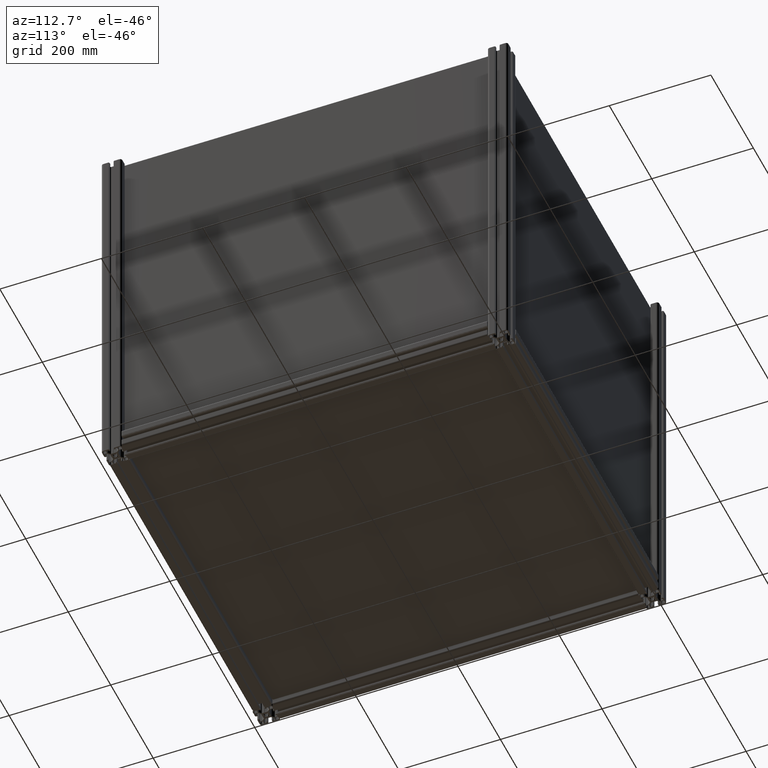
[diagram: clean part render]
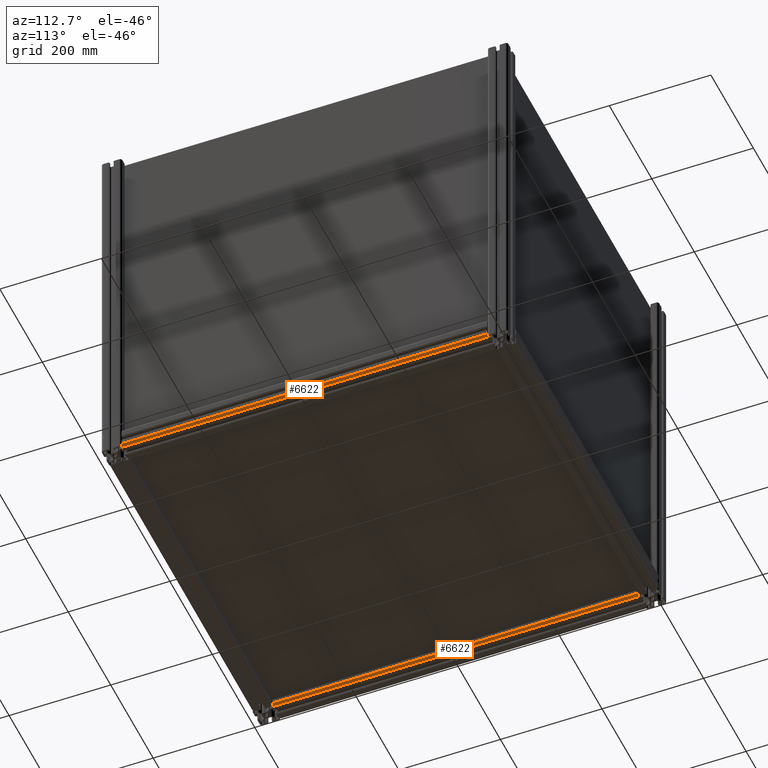
[diagram: same view with one multi-face feature highlighted, each face labeled with its STEP entity id]
A machine part, auxiliary view. The highlighted faces form ONE feature: a constant-radius fillet chain: 2 tangent blend faces with common blend radius 4.5 mm. The faces share edges in the B-rep.
Their STEP definitions:
[1] entity #6622 (Cylinder):
#585 = VECTOR ( 'NONE', #6517, 1000.000000000000000 ) ;
#679 = DIRECTION ( 'NONE',  ( 0.000000000000000000, 0.000000000000000000, 1.000000000000000000 ) ) ;
#680 = DIRECTION ( 'NONE',  ( -1.000000000000000000, 0.000000000000000000, 0.000000000000000000 ) ) ;
#1772 = ORIENTED_EDGE ( 'NONE', *, *, #9236, .F. ) ;
#2627 = VERTEX_POINT ( 'NONE', #4440 ) ;
#2941 = DIRECTION ( 'NONE',  ( -1.000000000000000000, 0.000000000000000000, 0.000000000000000000 ) ) ;
#3309 = EDGE_LOOP ( 'NONE', ( #8115, #5472, #1772, #16495 ) ) ;
#3312 = DIRECTION ( 'NONE',  ( -1.000000000000000000, 0.000000000000000000, 0.000000000000000000 ) ) ;
#3463 = CARTESIAN_POINT ( 'NONE',  ( 15.50000000000000000, -15.49999999999820055, 0.000000000000000000 ) ) ;
#3668 = EDGE_CURVE ( 'NONE', #15902, #5578, #10125, .T. ) ;
#3745 = CARTESIAN_POINT ( 'NONE',  ( 15.50000000000000000, -19.99999999999819877, 0.000000000000000000 ) ) ;
#3928 = CARTESIAN_POINT ( 'NONE',  ( 20.00000000000000000, -15.49999999999820055, 0.000000000000000000 ) ) ;
#4440 = CARTESIAN_POINT ( 'NONE',  ( 20.00000000000000000, -15.49999999999820055, 720.0000000000000000 ) ) ;
#4499 = EDGE_CURVE ( 'NONE', #5578, #2627, #12093, .T. ) ;
#4725 = CARTESIAN_POINT ( 'NONE',  ( 15.50000000000000000, -15.49999999999820055, 720.0000000000000000 ) ) ;
#5472 = ORIENTED_EDGE ( 'NONE', *, *, #4499, .T. ) ;
#5578 = VERTEX_POINT ( 'NONE', #3928 ) ;
#5687 = LINE ( 'NONE', #8597, #5736 ) ;
#5736 = VECTOR ( 'NONE', #7011, 1000.000000000000000 ) ;
#6517 = DIRECTION ( 'NONE',  ( 0.000000000000000000, 0.000000000000000000, 1.000000000000000000 ) ) ;
#6622 = ADVANCED_FACE ( 'NONE', ( #7708 ), #13216, .T. ) ;
#7011 = DIRECTION ( 'NONE',  ( 0.000000000000000000, 0.000000000000000000, -1.000000000000000000 ) ) ;
#7119 = CIRCLE ( 'NONE', #9539, 4.500000000000000888 ) ;
#7162 = CARTESIAN_POINT ( 'NONE',  ( 15.50000000000000000, -15.49999999999820055, 720.0000000000000000 ) ) ;
#7708 = FACE_OUTER_BOUND ( 'NONE', #3309, .T. ) ;
#8115 = ORIENTED_EDGE ( 'NONE', *, *, #3668, .T. ) ;
#8597 = CARTESIAN_POINT ( 'NONE',  ( 15.50000000000000000, -19.99999999999819877, 720.0000000000000000 ) ) ;
#8894 = AXIS2_PLACEMENT_3D ( 'NONE', #4725, #13702, #3312 ) ;
#9236 = EDGE_CURVE ( 'NONE', #9867, #2627, #7119, .T. ) ;
#9539 = AXIS2_PLACEMENT_3D ( 'NONE', #7162, #679, #2941 ) ;
#9867 = VERTEX_POINT ( 'NONE', #14634 ) ;
#10013 = EDGE_CURVE ( 'NONE', #9867, #15902, #5687, .T. ) ;
#10125 = CIRCLE ( 'NONE', #11935, 4.500000000000000888 ) ;
#11935 = AXIS2_PLACEMENT_3D ( 'NONE', #3463, #14760, #680 ) ;
#12093 = LINE ( 'NONE', #13225, #585 ) ;
#13216 = CYLINDRICAL_SURFACE ( 'NONE', #8894, 4.500000000000000888 ) ;
#13225 = CARTESIAN_POINT ( 'NONE',  ( 20.00000000000000000, -15.49999999999820055, 720.0000000000000000 ) ) ;
#13702 = DIRECTION ( 'NONE',  ( 0.000000000000000000, 0.000000000000000000, -1.000000000000000000 ) ) ;
#14634 = CARTESIAN_POINT ( 'NONE',  ( 15.50000000000000000, -19.99999999999819877, 720.0000000000000000 ) ) ;
#14760 = DIRECTION ( 'NONE',  ( 0.000000000000000000, 0.000000000000000000, 1.000000000000000000 ) ) ;
#15902 = VERTEX_POINT ( 'NONE', #3745 ) ;
#16495 = ORIENTED_EDGE ( 'NONE', *, *, #10013, .T. ) ;
[2] entity #6622 (Cylinder):
#585 = VECTOR ( 'NONE', #6517, 1000.000000000000000 ) ;
#679 = DIRECTION ( 'NONE',  ( 0.000000000000000000, 0.000000000000000000, 1.000000000000000000 ) ) ;
#680 = DIRECTION ( 'NONE',  ( -1.000000000000000000, 0.000000000000000000, 0.000000000000000000 ) ) ;
#1772 = ORIENTED_EDGE ( 'NONE', *, *, #9236, .F. ) ;
#2627 = VERTEX_POINT ( 'NONE', #4440 ) ;
#2941 = DIRECTION ( 'NONE',  ( -1.000000000000000000, 0.000000000000000000, 0.000000000000000000 ) ) ;
#3309 = EDGE_LOOP ( 'NONE', ( #8115, #5472, #1772, #16495 ) ) ;
#3312 = DIRECTION ( 'NONE',  ( -1.000000000000000000, 0.000000000000000000, 0.000000000000000000 ) ) ;
#3463 = CARTESIAN_POINT ( 'NONE',  ( 15.50000000000000000, -15.49999999999820055, 0.000000000000000000 ) ) ;
#3668 = EDGE_CURVE ( 'NONE', #15902, #5578, #10125, .T. ) ;
#3745 = CARTESIAN_POINT ( 'NONE',  ( 15.50000000000000000, -19.99999999999819877, 0.000000000000000000 ) ) ;
#3928 = CARTESIAN_POINT ( 'NONE',  ( 20.00000000000000000, -15.49999999999820055, 0.000000000000000000 ) ) ;
#4440 = CARTESIAN_POINT ( 'NONE',  ( 20.00000000000000000, -15.49999999999820055, 720.0000000000000000 ) ) ;
#4499 = EDGE_CURVE ( 'NONE', #5578, #2627, #12093, .T. ) ;
#4725 = CARTESIAN_POINT ( 'NONE',  ( 15.50000000000000000, -15.49999999999820055, 720.0000000000000000 ) ) ;
#5472 = ORIENTED_EDGE ( 'NONE', *, *, #4499, .T. ) ;
#5578 = VERTEX_POINT ( 'NONE', #3928 ) ;
#5687 = LINE ( 'NONE', #8597, #5736 ) ;
#5736 = VECTOR ( 'NONE', #7011, 1000.000000000000000 ) ;
#6517 = DIRECTION ( 'NONE',  ( 0.000000000000000000, 0.000000000000000000, 1.000000000000000000 ) ) ;
#6622 = ADVANCED_FACE ( 'NONE', ( #7708 ), #13216, .T. ) ;
#7011 = DIRECTION ( 'NONE',  ( 0.000000000000000000, 0.000000000000000000, -1.000000000000000000 ) ) ;
#7119 = CIRCLE ( 'NONE', #9539, 4.500000000000000888 ) ;
#7162 = CARTESIAN_POINT ( 'NONE',  ( 15.50000000000000000, -15.49999999999820055, 720.0000000000000000 ) ) ;
#7708 = FACE_OUTER_BOUND ( 'NONE', #3309, .T. ) ;
#8115 = ORIENTED_EDGE ( 'NONE', *, *, #3668, .T. ) ;
#8597 = CARTESIAN_POINT ( 'NONE',  ( 15.50000000000000000, -19.99999999999819877, 720.0000000000000000 ) ) ;
#8894 = AXIS2_PLACEMENT_3D ( 'NONE', #4725, #13702, #3312 ) ;
#9236 = EDGE_CURVE ( 'NONE', #9867, #2627, #7119, .T. ) ;
#9539 = AXIS2_PLACEMENT_3D ( 'NONE', #7162, #679, #2941 ) ;
#9867 = VERTEX_POINT ( 'NONE', #14634 ) ;
#10013 = EDGE_CURVE ( 'NONE', #9867, #15902, #5687, .T. ) ;
#10125 = CIRCLE ( 'NONE', #11935, 4.500000000000000888 ) ;
#11935 = AXIS2_PLACEMENT_3D ( 'NONE', #3463, #14760, #680 ) ;
#12093 = LINE ( 'NONE', #13225, #585 ) ;
#13216 = CYLINDRICAL_SURFACE ( 'NONE', #8894, 4.500000000000000888 ) ;
#13225 = CARTESIAN_POINT ( 'NONE',  ( 20.00000000000000000, -15.49999999999820055, 720.0000000000000000 ) ) ;
#13702 = DIRECTION ( 'NONE',  ( 0.000000000000000000, 0.000000000000000000, -1.000000000000000000 ) ) ;
#14634 = CARTESIAN_POINT ( 'NONE',  ( 15.50000000000000000, -19.99999999999819877, 720.0000000000000000 ) ) ;
#14760 = DIRECTION ( 'NONE',  ( 0.000000000000000000, 0.000000000000000000, 1.000000000000000000 ) ) ;
#15902 = VERTEX_POINT ( 'NONE', #3745 ) ;
#16495 = ORIENTED_EDGE ( 'NONE', *, *, #10013, .T. ) ;